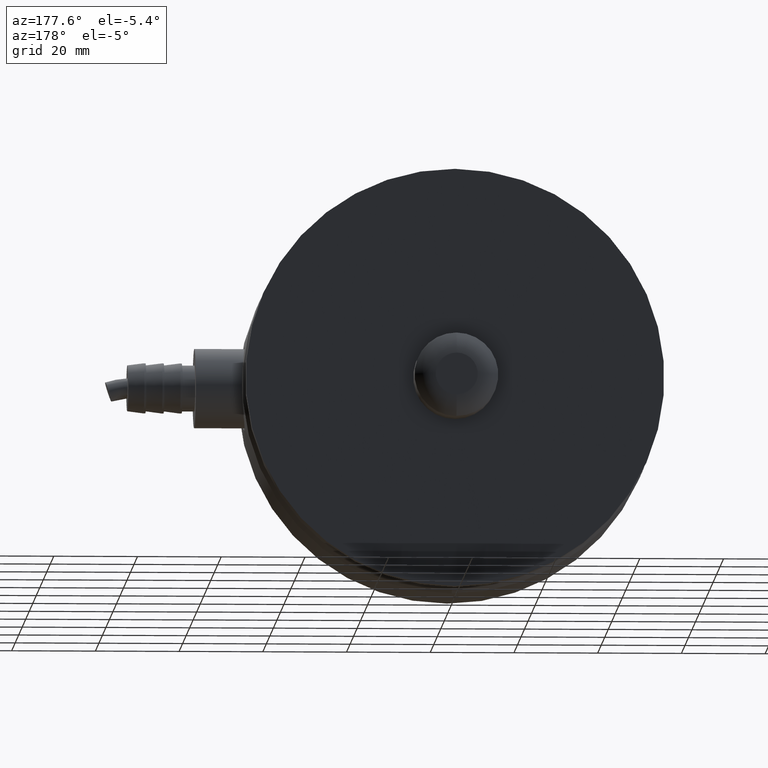
[diagram: clean part render]
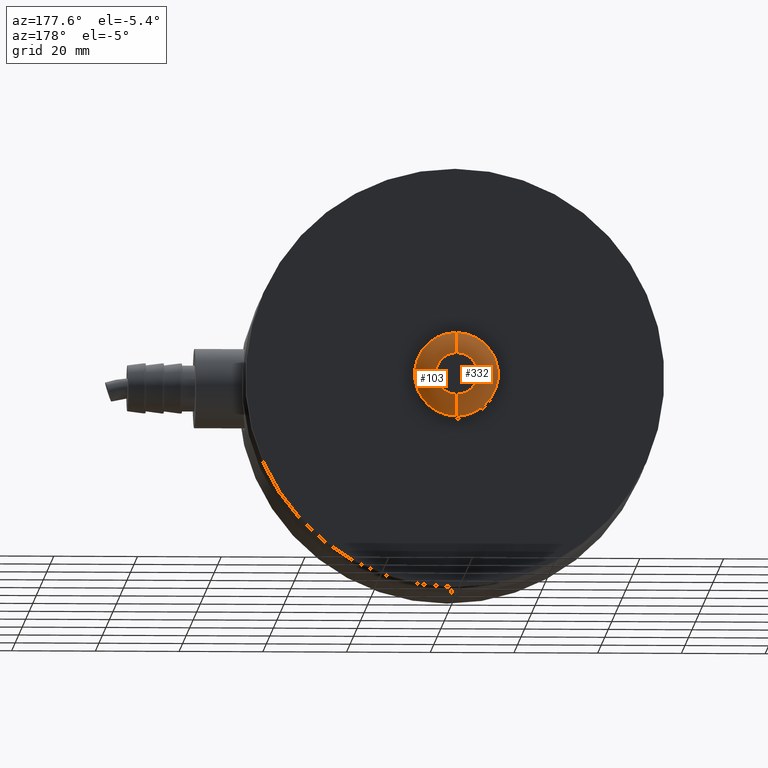
[diagram: same view with one multi-face feature highlighted, each face labeled with its STEP entity id]
A machine part, auxiliary view. The highlighted faces form ONE feature: a constant-radius fillet chain: 2 tangent blend faces with common blend radius 7.25 mm. The faces share edges in the B-rep.
Their STEP definitions:
[1] entity #332 (Torus):
#45 = EDGE_LOOP ( 'NONE', ( #196, #407, #195, #411 ) ) ;
#76 = VERTEX_POINT ( 'NONE', #522 ) ;
#77 = VERTEX_POINT ( 'NONE', #574 ) ;
#107 = VERTEX_POINT ( 'NONE', #606 ) ;
#108 = VERTEX_POINT ( 'NONE', #600 ) ;
#110 = EDGE_CURVE ( 'NONE', #108, #77, #585, .T. ) ;
#126 = EDGE_CURVE ( 'NONE', #107, #76, #656, .T. ) ;
#195 = ORIENTED_EDGE ( 'NONE', *, *, #126, .T. ) ;
#196 = ORIENTED_EDGE ( 'NONE', *, *, #110, .F. ) ;
#332 = ADVANCED_FACE ( 'NONE', ( #1168 ), #1163, .T. ) ;
#407 = ORIENTED_EDGE ( 'NONE', *, *, #416, .T. ) ;
#411 = ORIENTED_EDGE ( 'NONE', *, *, #412, .F. ) ;
#412 = EDGE_CURVE ( 'NONE', #77, #76, #969, .T. ) ;
#416 = EDGE_CURVE ( 'NONE', #108, #107, #1548, .T. ) ;
#522 = CARTESIAN_POINT ( 'NONE',  ( 0.0000000000000000000, 49.00000000000000000, -9.999999999999998200 ) ) ;
#574 = CARTESIAN_POINT ( 'NONE',  ( 1.224606353822377300E-015, 49.00000000000000000, 9.999999999999998200 ) ) ;
#583 = CARTESIAN_POINT ( 'NONE',  ( 6.123031769111887300E-016, 43.75000000000001400, 5.000000000000000900 ) ) ;
#584 = AXIS2_PLACEMENT_3D ( 'NONE', #583, #588, #587 ) ;
#585 = CIRCLE ( 'NONE', #584, 7.249999999999992900 ) ;
#587 = DIRECTION ( 'NONE',  ( -1.224606353822377300E-016, 0.0000000000000000000, -1.000000000000000000 ) ) ;
#588 = DIRECTION ( 'NONE',  ( 1.000000000000000000, 0.0000000000000000000, -1.224606353822377300E-016 ) ) ;
#600 = CARTESIAN_POINT ( 'NONE',  ( 9.184547653667829400E-016, 51.00000000000000700, 5.000000000000000000 ) ) ;
#606 = CARTESIAN_POINT ( 'NONE',  ( 0.0000000000000000000, 51.00000000000000700, -5.000000000000000000 ) ) ;
#640 = DIRECTION ( 'NONE',  ( 0.0000000000000000000, 0.0000000000000000000, 1.000000000000000000 ) ) ;
#642 = AXIS2_PLACEMENT_3D ( 'NONE', #702, #712, #640 ) ;
#656 = CIRCLE ( 'NONE', #642, 7.249999999999992900 ) ;
#702 = CARTESIAN_POINT ( 'NONE',  ( 0.0000000000000000000, 43.75000000000001400, -5.000000000000000900 ) ) ;
#712 = DIRECTION ( 'NONE',  ( -1.000000000000000000, 0.0000000000000000000, 0.0000000000000000000 ) ) ;
#941 = CARTESIAN_POINT ( 'NONE',  ( 0.0000000000000000000, 49.00000000000000000, 0.0000000000000000000 ) ) ;
#969 = CIRCLE ( 'NONE', #975, 9.999999999999998200 ) ;
#975 = AXIS2_PLACEMENT_3D ( 'NONE', #941, #1088, #1018 ) ;
#1018 = DIRECTION ( 'NONE',  ( 0.0000000000000000000, 0.0000000000000000000, -1.000000000000000000 ) ) ;
#1088 = DIRECTION ( 'NONE',  ( -0.0000000000000000000, -1.000000000000000000, -0.0000000000000000000 ) ) ;
#1162 = CARTESIAN_POINT ( 'NONE',  ( 0.0000000000000000000, 43.75000000000001400, 0.0000000000000000000 ) ) ;
#1163 = TOROIDAL_SURFACE ( 'NONE', #1198, 5.000000000000000900, 7.249999999999992900 ) ;
#1168 = FACE_OUTER_BOUND ( 'NONE', #45, .T. ) ;
#1196 = DIRECTION ( 'NONE',  ( 0.0000000000000000000, 0.0000000000000000000, -1.000000000000000000 ) ) ;
#1197 = DIRECTION ( 'NONE',  ( -0.0000000000000000000, -1.000000000000000000, -0.0000000000000000000 ) ) ;
#1198 = AXIS2_PLACEMENT_3D ( 'NONE', #1162, #1197, #1196 ) ;
#1517 = DIRECTION ( 'NONE',  ( 0.0000000000000000000, 0.0000000000000000000, -1.000000000000000000 ) ) ;
#1518 = DIRECTION ( 'NONE',  ( -0.0000000000000000000, -1.000000000000000000, -0.0000000000000000000 ) ) ;
#1519 = CARTESIAN_POINT ( 'NONE',  ( 0.0000000000000000000, 51.00000000000000700, 0.0000000000000000000 ) ) ;
#1520 = AXIS2_PLACEMENT_3D ( 'NONE', #1519, #1518, #1517 ) ;
#1548 = CIRCLE ( 'NONE', #1520, 5.000000000000000000 ) ;
[2] entity #103 (Torus):
#76 = VERTEX_POINT ( 'NONE', #522 ) ;
#77 = VERTEX_POINT ( 'NONE', #574 ) ;
#91 = ORIENTED_EDGE ( 'NONE', *, *, #102, .F. ) ;
#102 = EDGE_CURVE ( 'NONE', #76, #77, #549, .T. ) ;
#103 = ADVANCED_FACE ( 'NONE', ( #550 ), #610, .T. ) ;
#104 = EDGE_LOOP ( 'NONE', ( #105, #109, #91, #125 ) ) ;
#105 = ORIENTED_EDGE ( 'NONE', *, *, #106, .T. ) ;
#106 = EDGE_CURVE ( 'NONE', #107, #108, #592, .T. ) ;
#107 = VERTEX_POINT ( 'NONE', #606 ) ;
#108 = VERTEX_POINT ( 'NONE', #600 ) ;
#109 = ORIENTED_EDGE ( 'NONE', *, *, #110, .T. ) ;
#110 = EDGE_CURVE ( 'NONE', #108, #77, #585, .T. ) ;
#125 = ORIENTED_EDGE ( 'NONE', *, *, #126, .F. ) ;
#126 = EDGE_CURVE ( 'NONE', #107, #76, #656, .T. ) ;
#522 = CARTESIAN_POINT ( 'NONE',  ( 0.0000000000000000000, 49.00000000000000000, -9.999999999999998200 ) ) ;
#545 = DIRECTION ( 'NONE',  ( 0.0000000000000000000, 0.0000000000000000000, -1.000000000000000000 ) ) ;
#546 = DIRECTION ( 'NONE',  ( -0.0000000000000000000, -1.000000000000000000, -0.0000000000000000000 ) ) ;
#547 = CARTESIAN_POINT ( 'NONE',  ( 0.0000000000000000000, 49.00000000000000000, 0.0000000000000000000 ) ) ;
#548 = AXIS2_PLACEMENT_3D ( 'NONE', #547, #546, #545 ) ;
#549 = CIRCLE ( 'NONE', #548, 9.999999999999998200 ) ;
#550 = FACE_OUTER_BOUND ( 'NONE', #104, .T. ) ;
#574 = CARTESIAN_POINT ( 'NONE',  ( 1.224606353822377300E-015, 49.00000000000000000, 9.999999999999998200 ) ) ;
#583 = CARTESIAN_POINT ( 'NONE',  ( 6.123031769111887300E-016, 43.75000000000001400, 5.000000000000000900 ) ) ;
#584 = AXIS2_PLACEMENT_3D ( 'NONE', #583, #588, #587 ) ;
#585 = CIRCLE ( 'NONE', #584, 7.249999999999992900 ) ;
#587 = DIRECTION ( 'NONE',  ( -1.224606353822377300E-016, 0.0000000000000000000, -1.000000000000000000 ) ) ;
#588 = DIRECTION ( 'NONE',  ( 1.000000000000000000, 0.0000000000000000000, -1.224606353822377300E-016 ) ) ;
#589 = CARTESIAN_POINT ( 'NONE',  ( 0.0000000000000000000, 43.75000000000001400, 0.0000000000000000000 ) ) ;
#592 = CIRCLE ( 'NONE', #593, 5.000000000000000000 ) ;
#593 = AXIS2_PLACEMENT_3D ( 'NONE', #594, #608, #607 ) ;
#594 = CARTESIAN_POINT ( 'NONE',  ( 0.0000000000000000000, 51.00000000000000700, 0.0000000000000000000 ) ) ;
#600 = CARTESIAN_POINT ( 'NONE',  ( 9.184547653667829400E-016, 51.00000000000000700, 5.000000000000000000 ) ) ;
#601 = DIRECTION ( 'NONE',  ( -0.0000000000000000000, -1.000000000000000000, -0.0000000000000000000 ) ) ;
#606 = CARTESIAN_POINT ( 'NONE',  ( 0.0000000000000000000, 51.00000000000000700, -5.000000000000000000 ) ) ;
#607 = DIRECTION ( 'NONE',  ( 0.0000000000000000000, 0.0000000000000000000, -1.000000000000000000 ) ) ;
#608 = DIRECTION ( 'NONE',  ( -0.0000000000000000000, -1.000000000000000000, -0.0000000000000000000 ) ) ;
#609 = DIRECTION ( 'NONE',  ( 0.0000000000000000000, 0.0000000000000000000, -1.000000000000000000 ) ) ;
#610 = TOROIDAL_SURFACE ( 'NONE', #616, 5.000000000000000900, 7.249999999999992900 ) ;
#616 = AXIS2_PLACEMENT_3D ( 'NONE', #589, #601, #609 ) ;
#640 = DIRECTION ( 'NONE',  ( 0.0000000000000000000, 0.0000000000000000000, 1.000000000000000000 ) ) ;
#642 = AXIS2_PLACEMENT_3D ( 'NONE', #702, #712, #640 ) ;
#656 = CIRCLE ( 'NONE', #642, 7.249999999999992900 ) ;
#702 = CARTESIAN_POINT ( 'NONE',  ( 0.0000000000000000000, 43.75000000000001400, -5.000000000000000900 ) ) ;
#712 = DIRECTION ( 'NONE',  ( -1.000000000000000000, 0.0000000000000000000, 0.0000000000000000000 ) ) ;